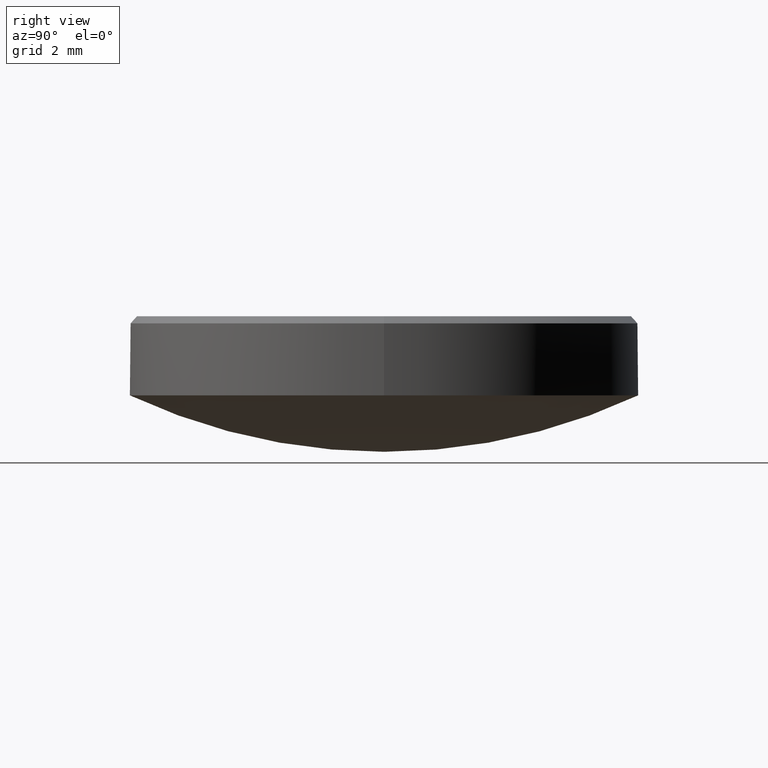
[diagram: clean part render]
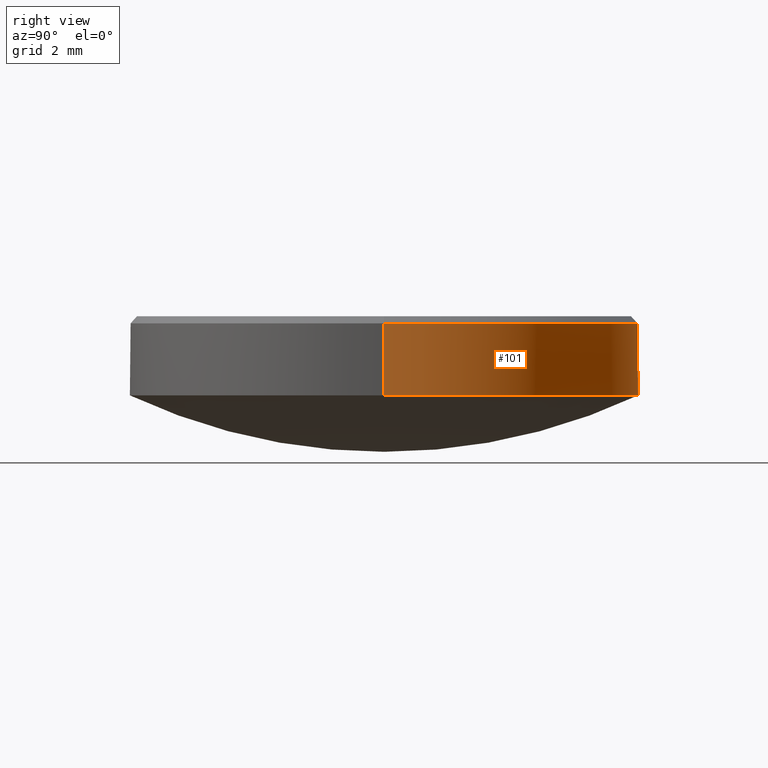
[diagram: same view with one face highlighted and labeled with its STEP entity id]
A machine part, right view. The second image highlights one B-rep face of the part: STEP entity #101.
In plain terms, the highlighted cylindrical surface (partial cylindrical patch) has radius 6.35 mm, axis along (-0, -0, -1).
Its self-contained STEP definition (entity closure, byte-faithful):
#2 = EDGE_CURVE ( 'NONE', #90, #249, #226, .T. ) ;
#4 = CARTESIAN_POINT ( 'NONE',  ( -6.349999999999999645, 0.000000000000000000, 5.800000000000006928 ) ) ;
#7 = AXIS2_PLACEMENT_3D ( 'NONE', #29, #116, #207 ) ;
#8 = CARTESIAN_POINT ( 'NONE',  ( -6.349999999999999645, 0.000000000000000000, 10.00000000000000000 ) ) ;
#14 = AXIS2_PLACEMENT_3D ( 'NONE', #156, #234, #276 ) ;
#17 = DIRECTION ( 'NONE',  ( -0.000000000000000000, -0.000000000000000000, -1.000000000000000000 ) ) ;
#29 = CARTESIAN_POINT ( 'NONE',  ( 0.000000000000000000, 0.000000000000000000, 10.00000000000000000 ) ) ;
#32 = DIRECTION ( 'NONE',  ( 1.000000000000000000, 0.000000000000000000, 0.000000000000000000 ) ) ;
#33 = VERTEX_POINT ( 'NONE', #122 ) ;
#47 = VECTOR ( 'NONE', #17, 1000.000000000000000 ) ;
#58 = AXIS2_PLACEMENT_3D ( 'NONE', #142, #117, #32 ) ;
#67 = EDGE_CURVE ( 'NONE', #33, #245, #103, .T. ) ;
#74 = CYLINDRICAL_SURFACE ( 'NONE', #7, 6.349999999999999645 ) ;
#75 = EDGE_LOOP ( 'NONE', ( #164, #96, #206, #77, #146 ) ) ;
#77 = ORIENTED_EDGE ( 'NONE', *, *, #110, .T. ) ;
#87 = CIRCLE ( 'NONE', #14, 6.349999999999998757 ) ;
#90 = VERTEX_POINT ( 'NONE', #4 ) ;
#91 = VECTOR ( 'NONE', #143, 1000.000000000000000 ) ;
#93 = FACE_OUTER_BOUND ( 'NONE', #75, .T. ) ;
#95 = AXIS2_PLACEMENT_3D ( 'NONE', #270, #205, #139 ) ;
#96 = ORIENTED_EDGE ( 'NONE', *, *, #67, .T. ) ;
#99 = EDGE_CURVE ( 'NONE', #90, #33, #136, .T. ) ;
#101 = ADVANCED_FACE ( 'NONE', ( #93 ), #74, .T. ) ;
#102 = CARTESIAN_POINT ( 'NONE',  ( 6.349999999999998757, 7.776507174585691177E-16, 4.000000000000000000 ) ) ;
#103 = LINE ( 'NONE', #147, #47 ) ;
#105 = CARTESIAN_POINT ( 'NONE',  ( 0.000000000000000000, 6.350000000000001421, 3.999999999999999112 ) ) ;
#110 = EDGE_CURVE ( 'NONE', #204, #249, #231, .T. ) ;
#116 = DIRECTION ( 'NONE',  ( -0.000000000000000000, -0.000000000000000000, -1.000000000000000000 ) ) ;
#117 = DIRECTION ( 'NONE',  ( -0.000000000000000000, -0.000000000000000000, 1.000000000000000000 ) ) ;
#122 = CARTESIAN_POINT ( 'NONE',  ( 6.349999999999999645, 7.776507174585692163E-16, 5.800000000000006928 ) ) ;
#136 = CIRCLE ( 'NONE', #95, 6.349999999999999645 ) ;
#139 = DIRECTION ( 'NONE',  ( 1.000000000000000000, 0.000000000000000000, 0.000000000000000000 ) ) ;
#142 = CARTESIAN_POINT ( 'NONE',  ( 0.000000000000000000, 0.000000000000000000, 4.000000000000000000 ) ) ;
#143 = DIRECTION ( 'NONE',  ( -0.000000000000000000, -0.000000000000000000, -1.000000000000000000 ) ) ;
#146 = ORIENTED_EDGE ( 'NONE', *, *, #2, .F. ) ;
#147 = CARTESIAN_POINT ( 'NONE',  ( 6.349999999999999645, 7.776507174585692163E-16, 10.00000000000000000 ) ) ;
#156 = CARTESIAN_POINT ( 'NONE',  ( 0.000000000000000000, 0.000000000000000000, 4.000000000000000000 ) ) ;
#164 = ORIENTED_EDGE ( 'NONE', *, *, #99, .T. ) ;
#190 = CARTESIAN_POINT ( 'NONE',  ( -6.349999999999998757, 0.000000000000000000, 4.000000000000000000 ) ) ;
#203 = EDGE_CURVE ( 'NONE', #245, #204, #87, .T. ) ;
#204 = VERTEX_POINT ( 'NONE', #105 ) ;
#205 = DIRECTION ( 'NONE',  ( 0.000000000000000000, 0.000000000000000000, -1.000000000000000000 ) ) ;
#206 = ORIENTED_EDGE ( 'NONE', *, *, #203, .T. ) ;
#207 = DIRECTION ( 'NONE',  ( -1.000000000000000000, 0.000000000000000000, 0.000000000000000000 ) ) ;
#226 = LINE ( 'NONE', #8, #91 ) ;
#231 = CIRCLE ( 'NONE', #58, 6.349999999999998757 ) ;
#234 = DIRECTION ( 'NONE',  ( -0.000000000000000000, -0.000000000000000000, 1.000000000000000000 ) ) ;
#245 = VERTEX_POINT ( 'NONE', #102 ) ;
#249 = VERTEX_POINT ( 'NONE', #190 ) ;
#270 = CARTESIAN_POINT ( 'NONE',  ( 0.000000000000000000, 0.000000000000000000, 5.800000000000006928 ) ) ;
#276 = DIRECTION ( 'NONE',  ( 1.000000000000000000, 0.000000000000000000, 0.000000000000000000 ) ) ;